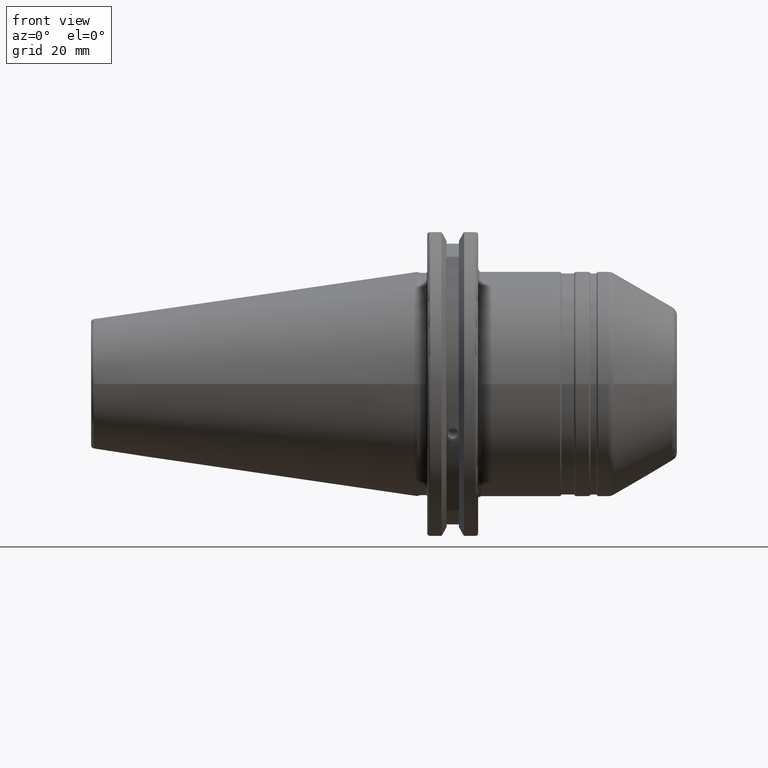
[diagram: clean part render]
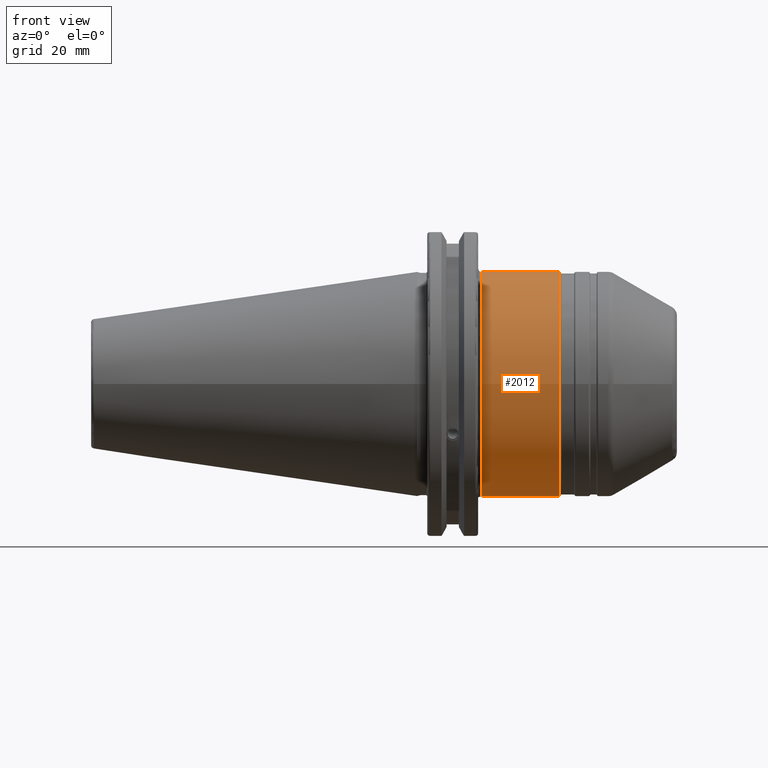
[diagram: same view with one face highlighted and labeled with its STEP entity id]
A machine part, front view. The second image highlights one B-rep face of the part: STEP entity #2012.
In plain terms, the highlighted cylindrical surface (bore or boss wall) has radius 34.95 mm, axis along (1, 0, 0).
Its self-contained STEP definition (entity closure, byte-faithful):
#181=FACE_OUTER_BOUND('',#285,.T.);
#285=EDGE_LOOP('',(#1457,#1458,#1459,#1460,#1461,#1462,#1463,#1464));
#396=LINE('',#3300,#497);
#497=VECTOR('',#2562,34.95);
#648=CIRCLE('',#2194,34.95);
#649=CIRCLE('',#2195,34.95);
#650=CIRCLE('',#2196,34.95);
#651=CIRCLE('',#2198,34.95);
#652=CIRCLE('',#2199,34.95);
#653=CIRCLE('',#2200,34.95);
#812=VERTEX_POINT('',#3291);
#813=VERTEX_POINT('',#3293);
#814=VERTEX_POINT('',#3295);
#815=VERTEX_POINT('',#3299);
#816=VERTEX_POINT('',#3301);
#817=VERTEX_POINT('',#3303);
#1064=EDGE_CURVE('',#812,#813,#648,.T.);
#1065=EDGE_CURVE('',#813,#814,#649,.T.);
#1066=EDGE_CURVE('',#814,#812,#650,.T.);
#1067=EDGE_CURVE('',#813,#815,#396,.T.);
#1068=EDGE_CURVE('',#816,#815,#651,.T.);
#1069=EDGE_CURVE('',#817,#816,#652,.T.);
#1070=EDGE_CURVE('',#815,#817,#653,.T.);
#1457=ORIENTED_EDGE('',*,*,#1066,.F.);
#1458=ORIENTED_EDGE('',*,*,#1065,.F.);
#1459=ORIENTED_EDGE('',*,*,#1067,.T.);
#1460=ORIENTED_EDGE('',*,*,#1068,.F.);
#1461=ORIENTED_EDGE('',*,*,#1069,.F.);
#1462=ORIENTED_EDGE('',*,*,#1070,.F.);
#1463=ORIENTED_EDGE('',*,*,#1067,.F.);
#1464=ORIENTED_EDGE('',*,*,#1064,.F.);
#1969=CYLINDRICAL_SURFACE('',#2197,34.95);
#2012=ADVANCED_FACE('',(#181),#1969,.T.);
#2194=AXIS2_PLACEMENT_3D('',#3294,#2554,#2555);
#2195=AXIS2_PLACEMENT_3D('',#3296,#2556,#2557);
#2196=AXIS2_PLACEMENT_3D('',#3297,#2558,#2559);
#2197=AXIS2_PLACEMENT_3D('',#3298,#2560,#2561);
#2198=AXIS2_PLACEMENT_3D('',#3302,#2563,#2564);
#2199=AXIS2_PLACEMENT_3D('',#3304,#2565,#2566);
#2200=AXIS2_PLACEMENT_3D('',#3305,#2567,#2568);
#2554=DIRECTION('center_axis',(1.,0.,0.));
#2555=DIRECTION('ref_axis',(0.,-1.,1.83697019872103E-16));
#2556=DIRECTION('center_axis',(1.,0.,0.));
#2557=DIRECTION('ref_axis',(0.,-1.,1.83697019872103E-16));
#2558=DIRECTION('center_axis',(1.,0.,0.));
#2559=DIRECTION('ref_axis',(0.,-1.,1.83697019872103E-16));
#2560=DIRECTION('center_axis',(1.,0.,0.));
#2561=DIRECTION('ref_axis',(0.,1.,0.));
#2562=DIRECTION('',(-1.,0.,0.));
#2563=DIRECTION('center_axis',(-1.,0.,0.));
#2564=DIRECTION('ref_axis',(0.,-1.,-1.22464679914735E-16));
#2565=DIRECTION('center_axis',(-1.,0.,0.));
#2566=DIRECTION('ref_axis',(0.,-1.,-1.22464679914735E-16));
#2567=DIRECTION('center_axis',(-1.,0.,0.));
#2568=DIRECTION('ref_axis',(0.,-1.,-1.22464679914735E-16));
#3291=CARTESIAN_POINT('',(44.4803847577293,-4.28014056302E-15,34.95));
#3293=CARTESIAN_POINT('',(44.4803847577293,-34.95,-4.28014056302E-15));
#3294=CARTESIAN_POINT('Origin',(44.4803847577293,0.,0.));
#3295=CARTESIAN_POINT('',(44.4803847577293,34.95,-2.14007028151E-15));
#3296=CARTESIAN_POINT('Origin',(44.4803847577293,0.,0.));
#3297=CARTESIAN_POINT('Origin',(44.4803847577293,0.,0.));
#3298=CARTESIAN_POINT('Origin',(31.8806624327026,0.,0.));
#3299=CARTESIAN_POINT('',(20.05,-34.95,-4.28014056302E-15));
#3300=CARTESIAN_POINT('',(31.8806624327026,-34.95,-4.28014056302E-15));
#3301=CARTESIAN_POINT('',(20.05,-4.28014056302E-15,-34.95));
#3302=CARTESIAN_POINT('Origin',(20.05,0.,0.));
#3303=CARTESIAN_POINT('',(20.05,34.95,0.));
#3304=CARTESIAN_POINT('Origin',(20.05,0.,0.));
#3305=CARTESIAN_POINT('Origin',(20.05,0.,0.));